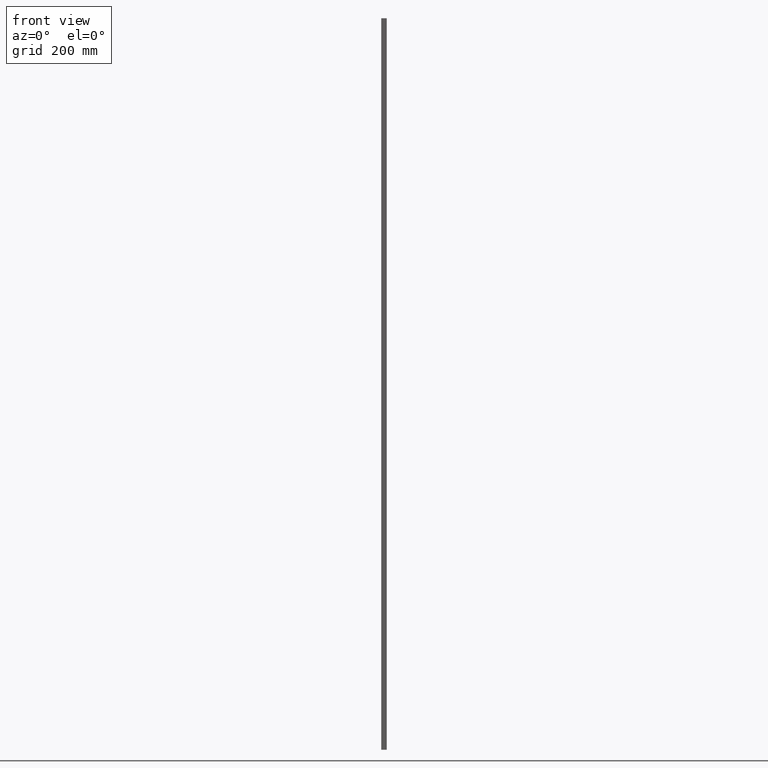
[diagram: clean part render]
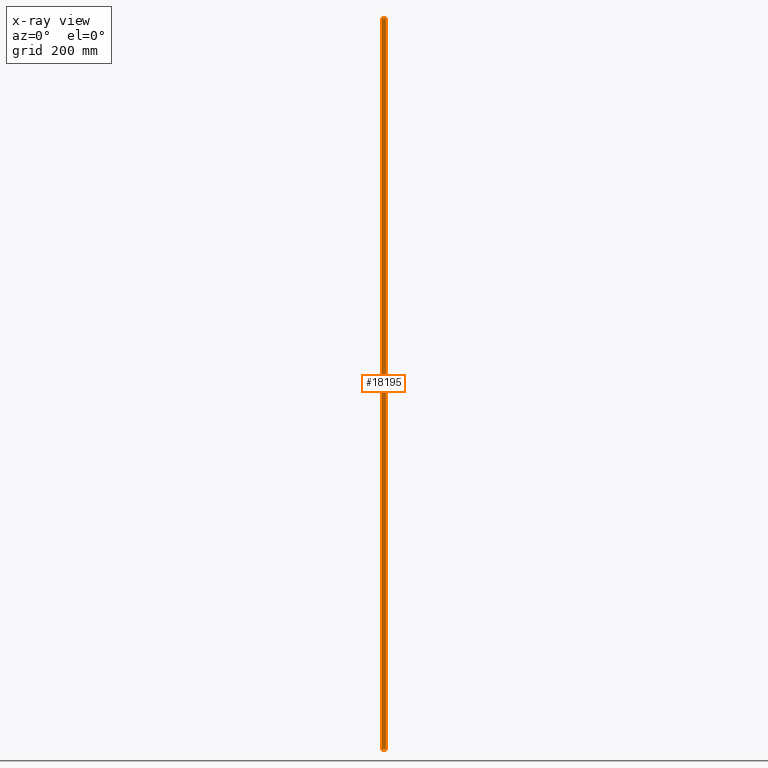
[diagram: x-ray — body ghosted, one internal face saturated and labeled with its STEP entity id]
A machine part, front view, then the same camera in x-ray: the body is ghosted and one INTERNAL B-rep face — a face not visible from any outside direction — is saturated and labeled: STEP entity #18195.
In plain terms, the highlighted planar face has unit normal (0, -1, 0).
Its self-contained STEP definition (entity closure, byte-faithful):
#503 = VERTEX_POINT ( 'NONE', #14987 ) ;
#621 = PLANE ( 'NONE',  #1205 ) ;
#997 = FACE_OUTER_BOUND ( 'NONE', #9311, .T. ) ;
#1205 = AXIS2_PLACEMENT_3D ( 'NONE', #15928, #14679, #8886 ) ;
#1674 = VERTEX_POINT ( 'NONE', #17250 ) ;
#1687 = VECTOR ( 'NONE', #13438, 1000.000000000000000 ) ;
#2173 = CARTESIAN_POINT ( 'NONE',  ( -5.549999999999998934, 6.000000000000000000, -1000.000000000000000 ) ) ;
#3164 = EDGE_CURVE ( 'NONE', #6821, #503, #7660, .T. ) ;
#3322 = ORIENTED_EDGE ( 'NONE', *, *, #6885, .F. ) ;
#3424 = CARTESIAN_POINT ( 'NONE',  ( 5.549999999999998934, 6.000000000000000000, 1000.000000000000000 ) ) ;
#6130 = ORIENTED_EDGE ( 'NONE', *, *, #17843, .T. ) ;
#6478 = VECTOR ( 'NONE', #11908, 1000.000000000000000 ) ;
#6821 = VERTEX_POINT ( 'NONE', #9325 ) ;
#6885 = EDGE_CURVE ( 'NONE', #1674, #15726, #14863, .T. ) ;
#7660 = LINE ( 'NONE', #3424, #16690 ) ;
#8886 = DIRECTION ( 'NONE',  ( 0.000000000000000000, -0.000000000000000000, -1.000000000000000000 ) ) ;
#9263 = CARTESIAN_POINT ( 'NONE',  ( -5.549999999999998934, 6.000000000000000000, 1000.000000000000000 ) ) ;
#9311 = EDGE_LOOP ( 'NONE', ( #6130, #3322, #16039, #11335 ) ) ;
#9325 = CARTESIAN_POINT ( 'NONE',  ( 5.549999999999998934, 6.000000000000000000, 1000.000000000000000 ) ) ;
#11335 = ORIENTED_EDGE ( 'NONE', *, *, #3164, .T. ) ;
#11843 = DIRECTION ( 'NONE',  ( -1.000000000000000000, -0.000000000000000000, -0.000000000000000000 ) ) ;
#11887 = CARTESIAN_POINT ( 'NONE',  ( -5.549999999999998934, 6.000000000000000000, -1000.000000000000000 ) ) ;
#11908 = DIRECTION ( 'NONE',  ( -1.000000000000000000, -0.000000000000000000, -0.000000000000000000 ) ) ;
#12918 = LINE ( 'NONE', #13189, #13789 ) ;
#13059 = DIRECTION ( 'NONE',  ( -0.000000000000000000, -0.000000000000000000, -1.000000000000000000 ) ) ;
#13189 = CARTESIAN_POINT ( 'NONE',  ( -5.549999999999998934, 6.000000000000000000, 1000.000000000000000 ) ) ;
#13438 = DIRECTION ( 'NONE',  ( -0.000000000000000000, -0.000000000000000000, -1.000000000000000000 ) ) ;
#13789 = VECTOR ( 'NONE', #11843, 1000.000000000000000 ) ;
#14679 = DIRECTION ( 'NONE',  ( 0.000000000000000000, -1.000000000000000000, 0.000000000000000000 ) ) ;
#14863 = LINE ( 'NONE', #9263, #1687 ) ;
#14987 = CARTESIAN_POINT ( 'NONE',  ( 5.549999999999998934, 6.000000000000000000, -1000.000000000000000 ) ) ;
#15726 = VERTEX_POINT ( 'NONE', #11887 ) ;
#15928 = CARTESIAN_POINT ( 'NONE',  ( -5.549999999999998934, 6.000000000000000000, 1000.000000000000000 ) ) ;
#16039 = ORIENTED_EDGE ( 'NONE', *, *, #16505, .F. ) ;
#16505 = EDGE_CURVE ( 'NONE', #6821, #1674, #12918, .T. ) ;
#16690 = VECTOR ( 'NONE', #13059, 1000.000000000000000 ) ;
#17250 = CARTESIAN_POINT ( 'NONE',  ( -5.549999999999998934, 6.000000000000000000, 1000.000000000000000 ) ) ;
#17739 = LINE ( 'NONE', #2173, #6478 ) ;
#17843 = EDGE_CURVE ( 'NONE', #503, #15726, #17739, .T. ) ;
#18195 = ADVANCED_FACE ( 'NONE', ( #997 ), #621, .F. ) ;